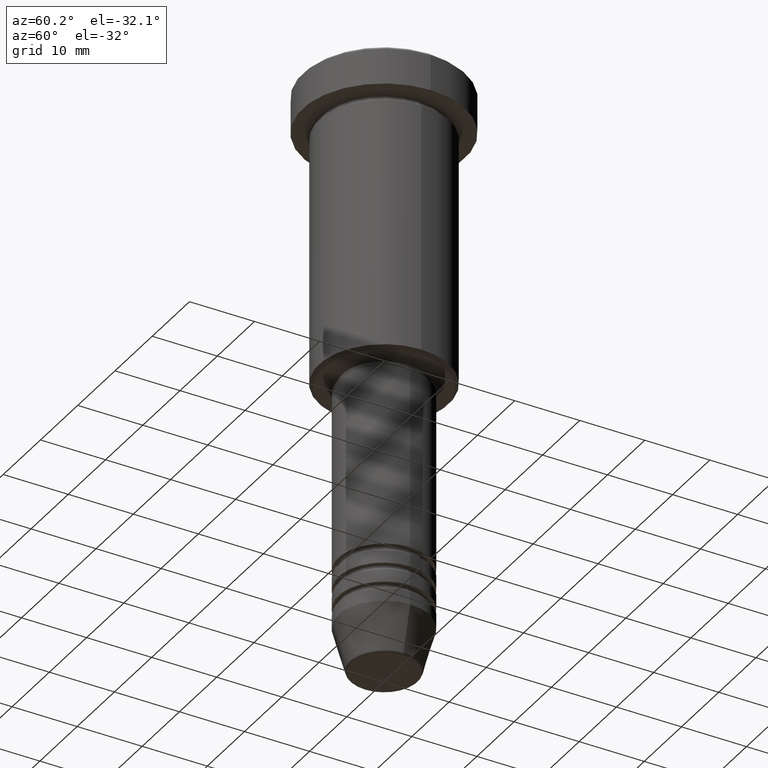
[diagram: clean part render]
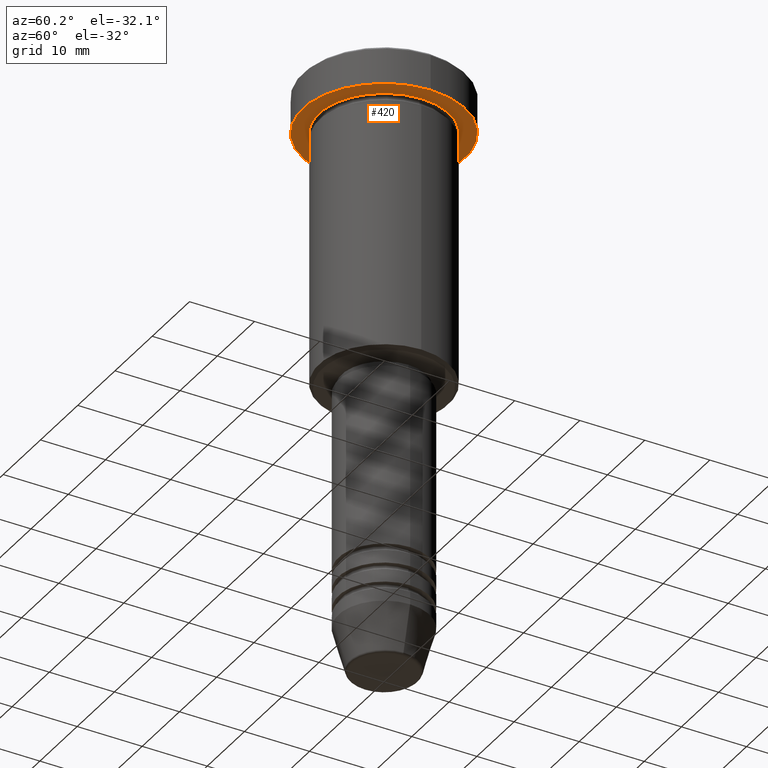
[diagram: same view with one face highlighted and labeled with its STEP entity id]
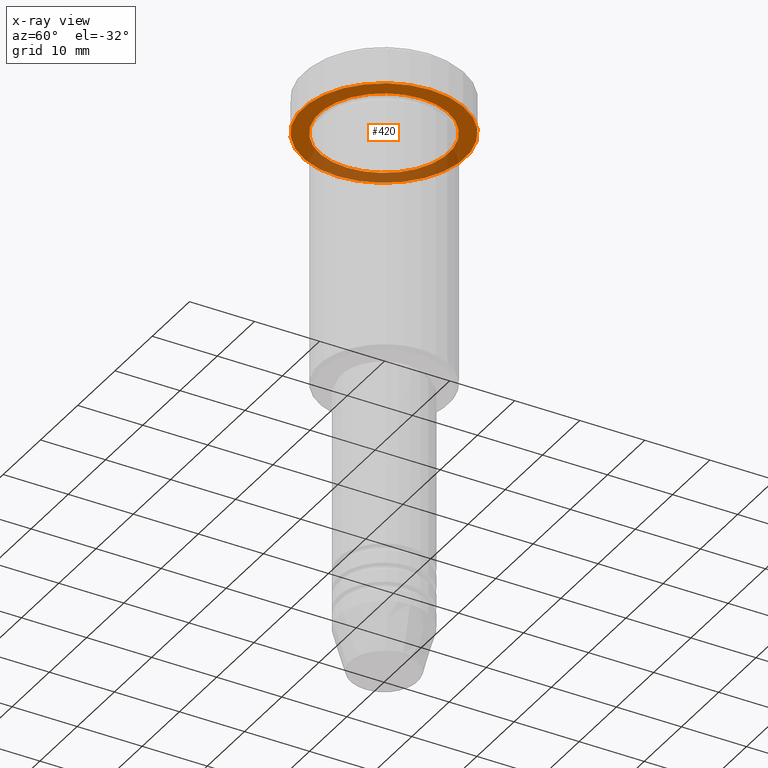
[diagram: x-ray of the same camera — body ghosted, the highlighted face saturated]
A machine part, auxiliary view. The second image highlights one B-rep face of the part: STEP entity #420.
The next image is the same camera in x-ray: the body ghosted, the highlighted face saturated — about 33% of this face is hidden behind the body in this view.
In plain terms, the highlighted planar face has unit normal (0, 0, -1).
Its self-contained STEP definition (entity closure, byte-faithful):
#17 = CARTESIAN_POINT ( 'NONE',  ( 0.000000000000000000, 0.000000000000000000, -5.999999999999996447 ) ) ;
#38 = CIRCLE ( 'NONE', #525, 10.00000000000000000 ) ;
#45 = EDGE_CURVE ( 'NONE', #690, #177, #52, .T. ) ;
#52 = CIRCLE ( 'NONE', #542, 12.50000000000000000 ) ;
#73 = CARTESIAN_POINT ( 'NONE',  ( 0.000000000000000000, 12.50000000000000000, -5.999999999999996447 ) ) ;
#86 = AXIS2_PLACEMENT_3D ( 'NONE', #660, #1037, #572 ) ;
#112 = CARTESIAN_POINT ( 'NONE',  ( 0.000000000000000000, 0.000000000000000000, -5.999999999999996447 ) ) ;
#123 = ORIENTED_EDGE ( 'NONE', *, *, #232, .T. ) ;
#138 = VERTEX_POINT ( 'NONE', #302 ) ;
#165 = PLANE ( 'NONE',  #633 ) ;
#177 = VERTEX_POINT ( 'NONE', #935 ) ;
#208 = EDGE_LOOP ( 'NONE', ( #743, #123 ) ) ;
#221 = CIRCLE ( 'NONE', #86, 10.00000000000000000 ) ;
#232 = EDGE_CURVE ( 'NONE', #138, #1035, #221, .T. ) ;
#251 = DIRECTION ( 'NONE',  ( 0.000000000000000000, 0.000000000000000000, -1.000000000000000000 ) ) ;
#302 = CARTESIAN_POINT ( 'NONE',  ( 10.00000000000000000, 1.224646799147353256E-15, -5.999999999999996447 ) ) ;
#346 = FACE_OUTER_BOUND ( 'NONE', #636, .T. ) ;
#369 = DIRECTION ( 'NONE',  ( -0.000000000000000000, -0.000000000000000000, 1.000000000000000000 ) ) ;
#420 = ADVANCED_FACE ( 'NONE', ( #979, #346 ), #165, .T. ) ;
#477 = DIRECTION ( 'NONE',  ( -1.000000000000000000, 0.000000000000000000, 0.000000000000000000 ) ) ;
#525 = AXIS2_PLACEMENT_3D ( 'NONE', #112, #369, #477 ) ;
#542 = AXIS2_PLACEMENT_3D ( 'NONE', #895, #1062, #836 ) ;
#572 = DIRECTION ( 'NONE',  ( -1.000000000000000000, 0.000000000000000000, 0.000000000000000000 ) ) ;
#604 = CARTESIAN_POINT ( 'NONE',  ( -10.00000000000000000, 0.000000000000000000, -5.999999999999996447 ) ) ;
#633 = AXIS2_PLACEMENT_3D ( 'NONE', #73, #251, #877 ) ;
#636 = EDGE_LOOP ( 'NONE', ( #949, #1097 ) ) ;
#660 = CARTESIAN_POINT ( 'NONE',  ( 0.000000000000000000, 0.000000000000000000, -5.999999999999996447 ) ) ;
#690 = VERTEX_POINT ( 'NONE', #1080 ) ;
#732 = DIRECTION ( 'NONE',  ( 1.000000000000000000, 0.000000000000000000, 0.000000000000000000 ) ) ;
#743 = ORIENTED_EDGE ( 'NONE', *, *, #790, .T. ) ;
#789 = EDGE_CURVE ( 'NONE', #177, #690, #1182, .T. ) ;
#790 = EDGE_CURVE ( 'NONE', #1035, #138, #38, .T. ) ;
#826 = DIRECTION ( 'NONE',  ( -0.000000000000000000, -0.000000000000000000, 1.000000000000000000 ) ) ;
#836 = DIRECTION ( 'NONE',  ( 1.000000000000000000, 0.000000000000000000, 0.000000000000000000 ) ) ;
#877 = DIRECTION ( 'NONE',  ( -1.000000000000000000, 0.000000000000000000, -0.000000000000000000 ) ) ;
#895 = CARTESIAN_POINT ( 'NONE',  ( 0.000000000000000000, 0.000000000000000000, -5.999999999999996447 ) ) ;
#930 = AXIS2_PLACEMENT_3D ( 'NONE', #17, #826, #732 ) ;
#935 = CARTESIAN_POINT ( 'NONE',  ( 12.50000000000000000, 0.000000000000000000, -5.999999999999996447 ) ) ;
#949 = ORIENTED_EDGE ( 'NONE', *, *, #789, .F. ) ;
#979 = FACE_BOUND ( 'NONE', #208, .T. ) ;
#1035 = VERTEX_POINT ( 'NONE', #604 ) ;
#1037 = DIRECTION ( 'NONE',  ( -0.000000000000000000, -0.000000000000000000, 1.000000000000000000 ) ) ;
#1062 = DIRECTION ( 'NONE',  ( -0.000000000000000000, -0.000000000000000000, 1.000000000000000000 ) ) ;
#1080 = CARTESIAN_POINT ( 'NONE',  ( -12.50000000000000000, 1.530808498934191521E-15, -5.999999999999996447 ) ) ;
#1097 = ORIENTED_EDGE ( 'NONE', *, *, #45, .F. ) ;
#1182 = CIRCLE ( 'NONE', #930, 12.50000000000000000 ) ;